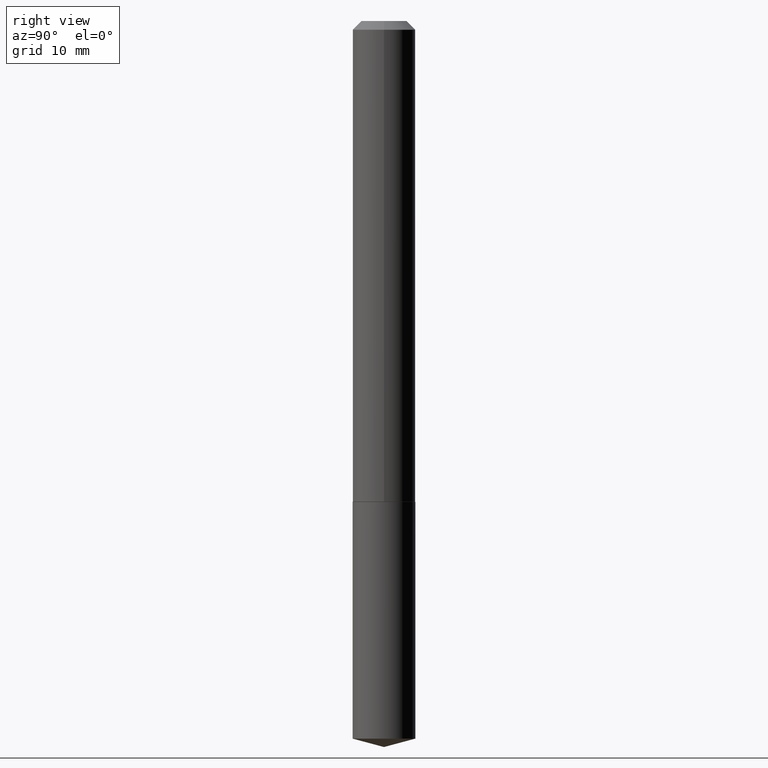
[diagram: clean part render]
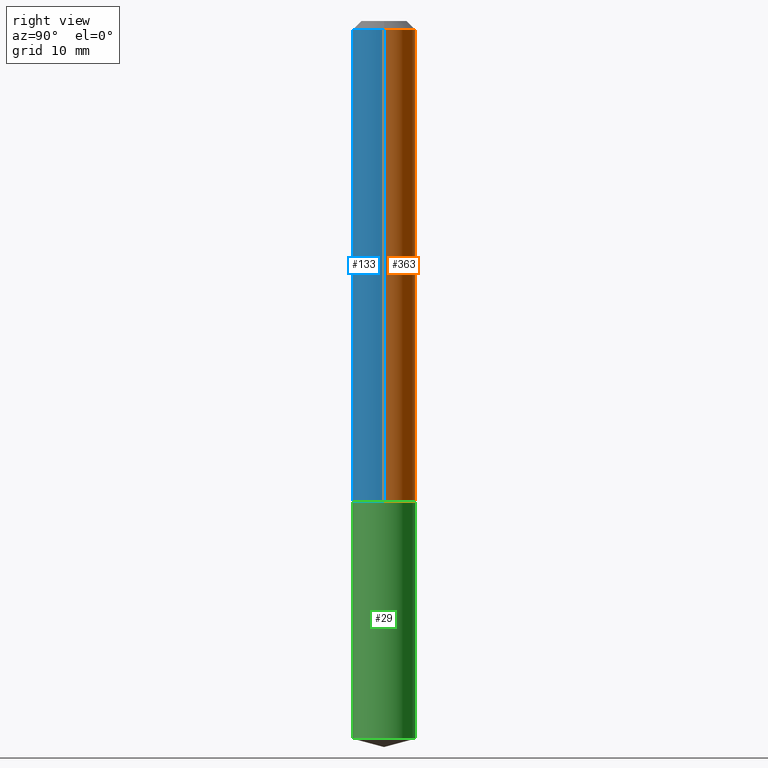
[diagram: same view with three faces highlighted in distinct colors, each labeled with its STEP entity id]
A machine part, right view with three faces highlighted in distinct colors.
Their STEP definitions:

[orange] entity #363 — the highlighted cylindrical surface (edge-blend (fillet) strip) has radius 2.8499 mm, axis along (-0, 0, 1).
#9 = CIRCLE ( 'NONE', #62, 0.1122000000000002023 ) ;
#17 = DIRECTION ( 'NONE',  ( 1.000000000000000000, -6.982962677686271444E-15, 0.000000000000000000 ) ) ;
#48 = CARTESIAN_POINT ( 'NONE',  ( -0.1122000000000002023, -5.207769805153490886E-15, -1.719899999999999540 ) ) ;
#62 = AXIS2_PLACEMENT_3D ( 'NONE', #276, #142, #17 ) ;
#78 = CARTESIAN_POINT ( 'NONE',  ( -0.1122000000000000081, -2.259824823734752725E-15, -0.03125000000000021511 ) ) ;
#99 = EDGE_CURVE ( 'NONE', #371, #318, #9, .T. ) ;
#103 = CARTESIAN_POINT ( 'NONE',  ( 0.1122000000000000081, -8.925972042752483013E-16, -0.03125000000000021511 ) ) ;
#124 = DIRECTION ( 'NONE',  ( 1.000000000000000000, -6.982962677686266711E-15, 0.000000000000000000 ) ) ;
#135 = CARTESIAN_POINT ( 'NONE',  ( -0.1122000000000001052, 7.972289495228331561E-16, -5.519045171266009325E-30 ) ) ;
#138 = EDGE_CURVE ( 'NONE', #346, #293, #192, .T. ) ;
#141 = DIRECTION ( 'NONE',  ( -2.445468806185136877E-29, 3.491481338843145188E-15, 1.000000000000000000 ) ) ;
#142 = DIRECTION ( 'NONE',  ( -2.445468806185136597E-29, 3.491481338843145583E-15, 1.000000000000000000 ) ) ;
#144 = LINE ( 'NONE', #135, #320 ) ;
#146 = AXIS2_PLACEMENT_3D ( 'NONE', #270, #388, #124 ) ;
#148 = ORIENTED_EDGE ( 'NONE', *, *, #296, .T. ) ;
#157 = VECTOR ( 'NONE', #141, 39.37007874015748143 ) ;
#189 = DIRECTION ( 'NONE',  ( -2.445468806185136597E-29, 3.491481338843145583E-15, 1.000000000000000000 ) ) ;
#192 = CIRCLE ( 'NONE', #146, 0.1122000000000000081 ) ;
#230 = ORIENTED_EDGE ( 'NONE', *, *, #138, .F. ) ;
#237 = ORIENTED_EDGE ( 'NONE', *, *, #300, .F. ) ;
#250 = CARTESIAN_POINT ( 'NONE',  ( 0.000000000000000000, 0.000000000000000000, 0.000000000000000000 ) ) ;
#255 = CYLINDRICAL_SURFACE ( 'NONE', #335, 0.1122000000000001052 ) ;
#270 = CARTESIAN_POINT ( 'NONE',  ( 7.642090019328603538E-31, -1.091087918388490390E-16, -0.03125000000000021511 ) ) ;
#276 = CARTESIAN_POINT ( 'NONE',  ( 4.205961799757815063E-29, -6.004998754676324634E-15, -1.719899999999999540 ) ) ;
#284 = EDGE_LOOP ( 'NONE', ( #314, #148, #230, #237 ) ) ;
#285 = LINE ( 'NONE', #344, #157 ) ;
#293 = VERTEX_POINT ( 'NONE', #78 ) ;
#296 = EDGE_CURVE ( 'NONE', #318, #293, #144, .T. ) ;
#300 = EDGE_CURVE ( 'NONE', #371, #346, #285, .T. ) ;
#307 = FACE_OUTER_BOUND ( 'NONE', #284, .T. ) ;
#314 = ORIENTED_EDGE ( 'NONE', *, *, #99, .T. ) ;
#318 = VERTEX_POINT ( 'NONE', #48 ) ;
#320 = VECTOR ( 'NONE', #366, 39.37007874015748143 ) ;
#335 = AXIS2_PLACEMENT_3D ( 'NONE', #250, #189, #369 ) ;
#344 = CARTESIAN_POINT ( 'NONE',  ( 0.1122000000000001052, -7.834884124363998909E-16, 5.471070342443044449E-30 ) ) ;
#346 = VERTEX_POINT ( 'NONE', #103 ) ;
#347 = CARTESIAN_POINT ( 'NONE',  ( 0.1122000000000002023, -6.788487167112725412E-15, -1.719899999999999540 ) ) ;
#363 = ADVANCED_FACE ( 'NONE', ( #307 ), #255, .T. ) ;
#366 = DIRECTION ( 'NONE',  ( -2.445468806185136877E-29, 3.491481338843145188E-15, 1.000000000000000000 ) ) ;
#369 = DIRECTION ( 'NONE',  ( 1.000000000000000000, -6.982962677686266711E-15, 4.876176775795935232E-29 ) ) ;
#371 = VERTEX_POINT ( 'NONE', #347 ) ;
#388 = DIRECTION ( 'NONE',  ( -2.445468806185136597E-29, 3.491481338843145583E-15, 1.000000000000000000 ) ) ;

[blue] entity #133 — the highlighted cylindrical surface (edge-blend (fillet) strip) has radius 2.8499 mm, axis along (-0, 0, 1).
#2 = AXIS2_PLACEMENT_3D ( 'NONE', #128, #96, #64 ) ;
#22 = DIRECTION ( 'NONE',  ( -2.445468806185136597E-29, 3.491481338843145583E-15, 1.000000000000000000 ) ) ;
#28 = CARTESIAN_POINT ( 'NONE',  ( 0.000000000000000000, 0.000000000000000000, 0.000000000000000000 ) ) ;
#48 = CARTESIAN_POINT ( 'NONE',  ( -0.1122000000000002023, -5.207769805153490886E-15, -1.719899999999999540 ) ) ;
#50 = EDGE_CURVE ( 'NONE', #318, #371, #277, .T. ) ;
#64 = DIRECTION ( 'NONE',  ( 1.000000000000000000, -6.982962677686266711E-15, 0.000000000000000000 ) ) ;
#78 = CARTESIAN_POINT ( 'NONE',  ( -0.1122000000000000081, -2.259824823734752725E-15, -0.03125000000000021511 ) ) ;
#87 = ORIENTED_EDGE ( 'NONE', *, *, #300, .T. ) ;
#94 = EDGE_CURVE ( 'NONE', #293, #346, #258, .T. ) ;
#96 = DIRECTION ( 'NONE',  ( -2.445468806185136597E-29, 3.491481338843145583E-15, 1.000000000000000000 ) ) ;
#103 = CARTESIAN_POINT ( 'NONE',  ( 0.1122000000000000081, -8.925972042752483013E-16, -0.03125000000000021511 ) ) ;
#122 = DIRECTION ( 'NONE',  ( 1.000000000000000000, -6.982962677686271444E-15, 0.000000000000000000 ) ) ;
#128 = CARTESIAN_POINT ( 'NONE',  ( 7.642090019328603538E-31, -1.091087918388490390E-16, -0.03125000000000021511 ) ) ;
#133 = ADVANCED_FACE ( 'NONE', ( #310 ), #298, .T. ) ;
#135 = CARTESIAN_POINT ( 'NONE',  ( -0.1122000000000001052, 7.972289495228331561E-16, -5.519045171266009325E-30 ) ) ;
#141 = DIRECTION ( 'NONE',  ( -2.445468806185136877E-29, 3.491481338843145188E-15, 1.000000000000000000 ) ) ;
#144 = LINE ( 'NONE', #135, #320 ) ;
#157 = VECTOR ( 'NONE', #141, 39.37007874015748143 ) ;
#181 = EDGE_LOOP ( 'NONE', ( #380, #364, #87, #375 ) ) ;
#212 = AXIS2_PLACEMENT_3D ( 'NONE', #28, #22, #235 ) ;
#227 = AXIS2_PLACEMENT_3D ( 'NONE', #245, #330, #122 ) ;
#235 = DIRECTION ( 'NONE',  ( 1.000000000000000000, -6.982962677686266711E-15, 4.876176775795935232E-29 ) ) ;
#245 = CARTESIAN_POINT ( 'NONE',  ( 4.205961799757815063E-29, -6.004998754676324634E-15, -1.719899999999999540 ) ) ;
#258 = CIRCLE ( 'NONE', #2, 0.1122000000000000081 ) ;
#277 = CIRCLE ( 'NONE', #227, 0.1122000000000002023 ) ;
#285 = LINE ( 'NONE', #344, #157 ) ;
#293 = VERTEX_POINT ( 'NONE', #78 ) ;
#296 = EDGE_CURVE ( 'NONE', #318, #293, #144, .T. ) ;
#298 = CYLINDRICAL_SURFACE ( 'NONE', #212, 0.1122000000000001052 ) ;
#300 = EDGE_CURVE ( 'NONE', #371, #346, #285, .T. ) ;
#310 = FACE_OUTER_BOUND ( 'NONE', #181, .T. ) ;
#318 = VERTEX_POINT ( 'NONE', #48 ) ;
#320 = VECTOR ( 'NONE', #366, 39.37007874015748143 ) ;
#330 = DIRECTION ( 'NONE',  ( -2.445468806185136597E-29, 3.491481338843145583E-15, 1.000000000000000000 ) ) ;
#344 = CARTESIAN_POINT ( 'NONE',  ( 0.1122000000000001052, -7.834884124363998909E-16, 5.471070342443044449E-30 ) ) ;
#346 = VERTEX_POINT ( 'NONE', #103 ) ;
#347 = CARTESIAN_POINT ( 'NONE',  ( 0.1122000000000002023, -6.788487167112725412E-15, -1.719899999999999540 ) ) ;
#364 = ORIENTED_EDGE ( 'NONE', *, *, #50, .T. ) ;
#366 = DIRECTION ( 'NONE',  ( -2.445468806185136877E-29, 3.491481338843145188E-15, 1.000000000000000000 ) ) ;
#371 = VERTEX_POINT ( 'NONE', #347 ) ;
#375 = ORIENTED_EDGE ( 'NONE', *, *, #94, .F. ) ;
#380 = ORIENTED_EDGE ( 'NONE', *, *, #296, .F. ) ;

[green] entity #29 — the highlighted cylindrical surface (edge-blend (fillet) strip) has radius 2.8499 mm, axis along (-0, 0, 1).
#1 = EDGE_CURVE ( 'NONE', #49, #203, #334, .T. ) ;
#24 = ORIENTED_EDGE ( 'NONE', *, *, #333, .F. ) ;
#25 = AXIS2_PLACEMENT_3D ( 'NONE', #180, #116, #154 ) ;
#27 = CARTESIAN_POINT ( 'NONE',  ( 4.207184534160907865E-29, -6.006744495345746138E-15, -1.720399999999999485 ) ) ;
#29 = ADVANCED_FACE ( 'NONE', ( #271 ), #358, .T. ) ;
#31 = VECTOR ( 'NONE', #367, 39.37007874015748143 ) ;
#33 = DIRECTION ( 'NONE',  ( -6.982962677686265133E-15, -1.000000000000000000, 2.434802133390608632E-15 ) ) ;
#34 = CARTESIAN_POINT ( 'NONE',  ( -7.834884124363362890E-16, -0.1122000000000089870, -2.568336100609227568 ) ) ;
#39 = DIRECTION ( 'NONE',  ( -2.445560472934105133E-29, 3.491350066841275320E-15, 1.000000000000000000 ) ) ;
#43 = ORIENTED_EDGE ( 'NONE', *, *, #160, .F. ) ;
#46 = AXIS2_PLACEMENT_3D ( 'NONE', #27, #210, #162 ) ;
#49 = VERTEX_POINT ( 'NONE', #34 ) ;
#74 = VECTOR ( 'NONE', #214, 39.37007874015748143 ) ;
#77 = ORIENTED_EDGE ( 'NONE', *, *, #1, .T. ) ;
#81 = LINE ( 'NONE', #159, #74 ) ;
#116 = DIRECTION ( 'NONE',  ( -2.445560472934105133E-29, 3.491350066841275320E-15, 1.000000000000000000 ) ) ;
#119 = VERTEX_POINT ( 'NONE', #345 ) ;
#131 = EDGE_LOOP ( 'NONE', ( #77, #355, #43, #24 ) ) ;
#145 = EDGE_CURVE ( 'NONE', #203, #119, #81, .T. ) ;
#154 = DIRECTION ( 'NONE',  ( -6.982962677686265133E-15, -1.000000000000000000, 4.869604266781217263E-15 ) ) ;
#159 = CARTESIAN_POINT ( 'NONE',  ( 7.972289495228743741E-16, 0.1121999999999939851, -1.720399999999999707 ) ) ;
#160 = EDGE_CURVE ( 'NONE', #224, #119, #168, .T. ) ;
#162 = DIRECTION ( 'NONE',  ( -6.982962677686265133E-15, -1.000000000000000000, 2.434802133390608632E-15 ) ) ;
#168 = CIRCLE ( 'NONE', #299, 0.1122000000000000081 ) ;
#171 = CARTESIAN_POINT ( 'NONE',  ( -7.834884124363568980E-16, -0.1122000000000060171, -1.720399999999999263 ) ) ;
#180 = CARTESIAN_POINT ( 'NONE',  ( 6.280863545384714568E-29, -8.967186256884906967E-15, -2.568336100609228456 ) ) ;
#186 = CARTESIAN_POINT ( 'NONE',  ( 4.207184534160907865E-29, -6.006744495345746138E-15, -1.720399999999999485 ) ) ;
#203 = VERTEX_POINT ( 'NONE', #279 ) ;
#210 = DIRECTION ( 'NONE',  ( -2.445560472934105133E-29, 3.491350066841275320E-15, 1.000000000000000000 ) ) ;
#214 = DIRECTION ( 'NONE',  ( -2.445560472934105133E-29, 3.491350066841275320E-15, 1.000000000000000000 ) ) ;
#221 = CARTESIAN_POINT ( 'NONE',  ( -7.834884124363568980E-16, -0.1122000000000060171, -1.720399999999999263 ) ) ;
#224 = VERTEX_POINT ( 'NONE', #171 ) ;
#257 = LINE ( 'NONE', #221, #31 ) ;
#271 = FACE_OUTER_BOUND ( 'NONE', #131, .T. ) ;
#279 = CARTESIAN_POINT ( 'NONE',  ( 7.972289495228953775E-16, 0.1121999999999910708, -2.568336100609228900 ) ) ;
#299 = AXIS2_PLACEMENT_3D ( 'NONE', #186, #39, #33 ) ;
#333 = EDGE_CURVE ( 'NONE', #49, #224, #257, .T. ) ;
#334 = CIRCLE ( 'NONE', #25, 0.1122000000000000081 ) ;
#345 = CARTESIAN_POINT ( 'NONE',  ( 7.972289495228952789E-16, 0.1121999999999939851, -1.720399999999999707 ) ) ;
#355 = ORIENTED_EDGE ( 'NONE', *, *, #145, .T. ) ;
#358 = CYLINDRICAL_SURFACE ( 'NONE', #46, 0.1122000000000000081 ) ;
#367 = DIRECTION ( 'NONE',  ( -2.445560472934105133E-29, 3.491350066841275320E-15, 1.000000000000000000 ) ) ;